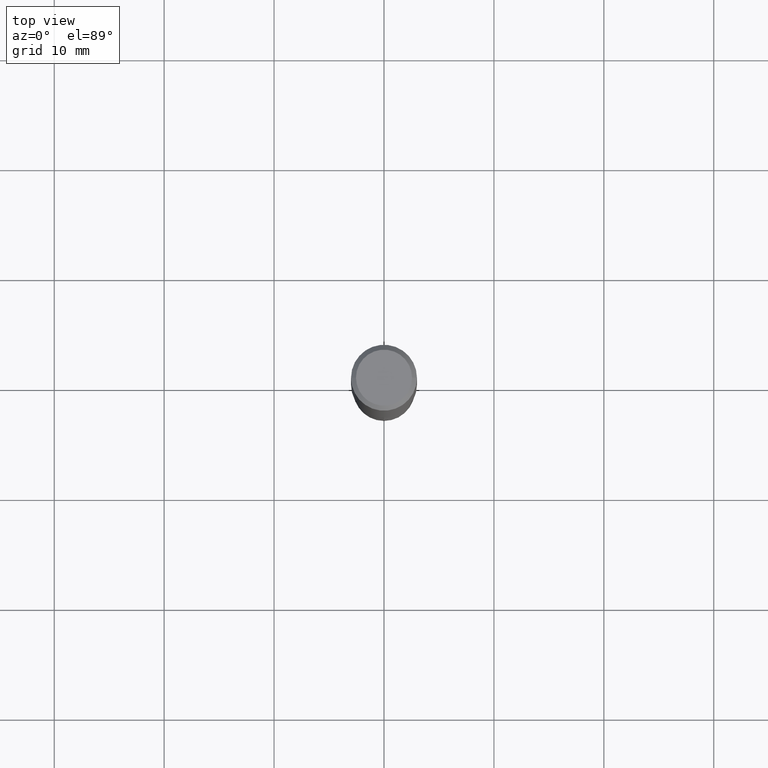
[diagram: clean part render]
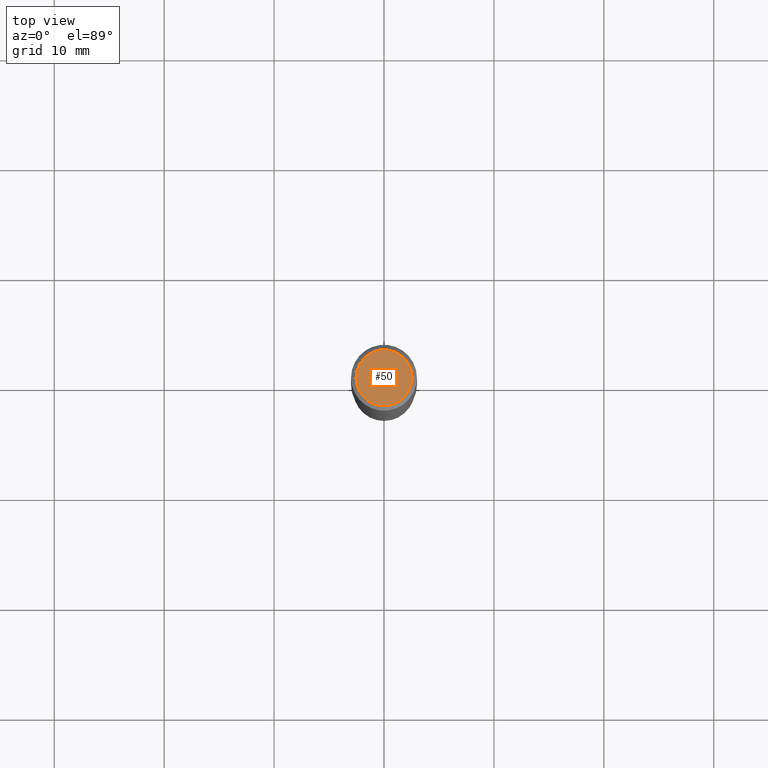
[diagram: same view with one face highlighted and labeled with its STEP entity id]
A machine part, top view. The second image highlights one B-rep face of the part: STEP entity #50.
In plain terms, the highlighted planar face has unit normal (0, -0, -1).
Its self-contained STEP definition (entity closure, byte-faithful):
#4 = VERTEX_POINT ( 'NONE', #418 ) ;
#5 = PLANE ( 'NONE',  #120 ) ;
#7 = AXIS2_PLACEMENT_3D ( 'NONE', #49, #386, #115 ) ;
#35 = ORIENTED_EDGE ( 'NONE', *, *, #334, .T. ) ;
#49 = CARTESIAN_POINT ( 'NONE',  ( 1.002970424325033577E-46, -1.431975951230896486E-32, -4.101342130344485961E-18 ) ) ;
#50 = ADVANCED_FACE ( 'NONE', ( #309 ), #5, .F. ) ;
#92 = CIRCLE ( 'NONE', #349, 0.1003850000000000020 ) ;
#106 = DIRECTION ( 'NONE',  ( 2.438088387897960049E-29, -3.491481338843145188E-15, -1.000000000000000000 ) ) ;
#115 = DIRECTION ( 'NONE',  ( 1.000000000000000000, -6.982962677686266711E-15, 4.876140833081945105E-29 ) ) ;
#120 = AXIS2_PLACEMENT_3D ( 'NONE', #156, #106, #410 ) ;
#134 = CARTESIAN_POINT ( 'NONE',  ( -0.1003850000000000020, 7.319105043583386689E-16, -4.101342130349496461E-18 ) ) ;
#156 = CARTESIAN_POINT ( 'NONE',  ( 5.014852121625167883E-47, -7.159879756154482429E-33, -2.050671065172242981E-18 ) ) ;
#231 = EDGE_LOOP ( 'NONE', ( #336, #35 ) ) ;
#234 = CARTESIAN_POINT ( 'NONE',  ( 1.002970424325033577E-46, -1.431975951230896486E-32, -4.101342130344485961E-18 ) ) ;
#239 = DIRECTION ( 'NONE',  ( 1.000000000000000000, -6.982962677686266711E-15, 4.876140833081945105E-29 ) ) ;
#269 = VERTEX_POINT ( 'NONE', #134 ) ;
#270 = DIRECTION ( 'NONE',  ( -2.445468806185136597E-29, 3.491481338843145583E-15, 1.000000000000000000 ) ) ;
#309 = FACE_OUTER_BOUND ( 'NONE', #231, .T. ) ;
#313 = EDGE_CURVE ( 'NONE', #269, #4, #92, .T. ) ;
#334 = EDGE_CURVE ( 'NONE', #4, #269, #439, .T. ) ;
#336 = ORIENTED_EDGE ( 'NONE', *, *, #313, .T. ) ;
#349 = AXIS2_PLACEMENT_3D ( 'NONE', #234, #270, #239 ) ;
#386 = DIRECTION ( 'NONE',  ( -2.445468806185136597E-29, 3.491481338843145583E-15, 1.000000000000000000 ) ) ;
#410 = DIRECTION ( 'NONE',  ( -1.000000000000000000, 6.982962677686265922E-15, -4.876176775795935793E-29 ) ) ;
#418 = CARTESIAN_POINT ( 'NONE',  ( 0.1003850000000000020, -7.803837484803598359E-16, -4.101342130339306751E-18 ) ) ;
#439 = CIRCLE ( 'NONE', #7, 0.1003850000000000020 ) ;